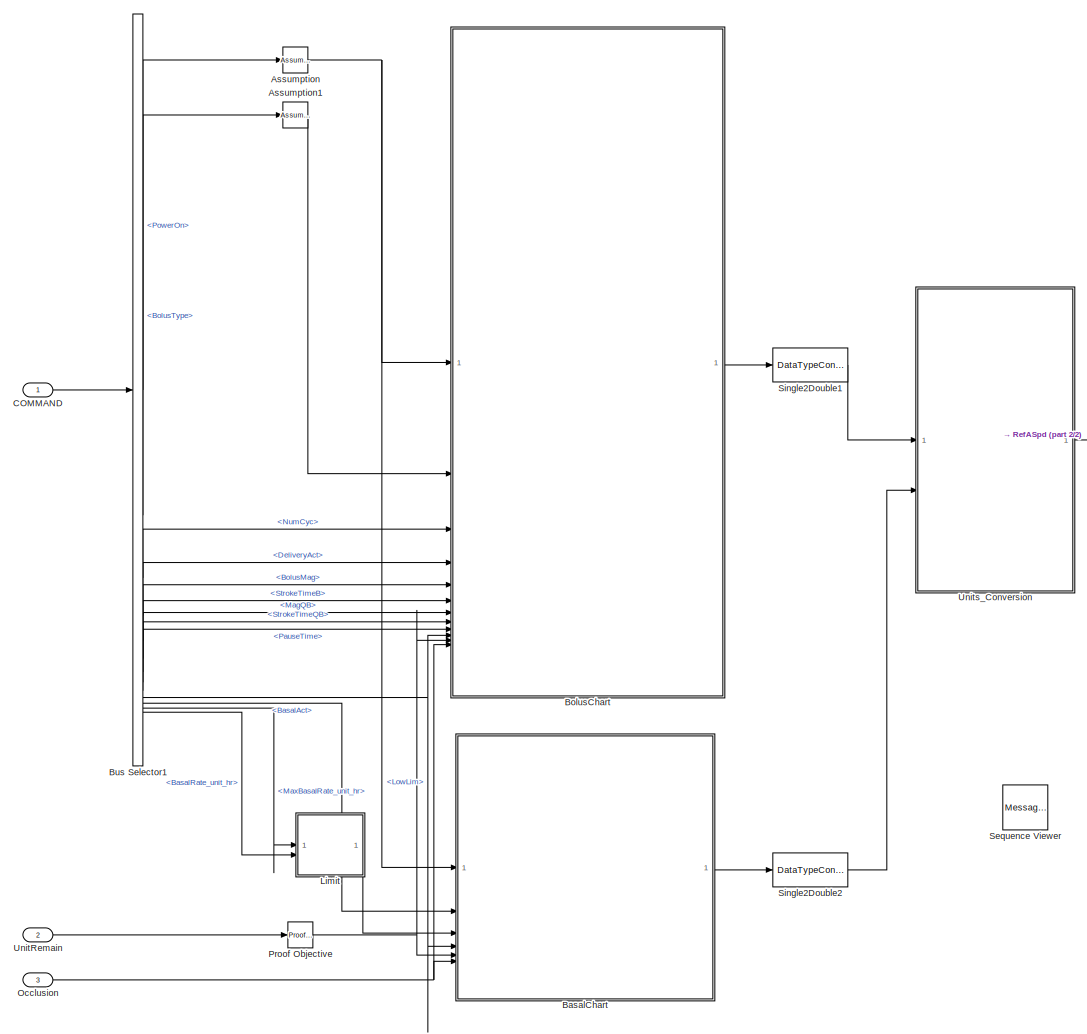
[diagram: root canvas - part 1/2, most of the canvas]
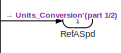
[diagram: root canvas - part 2/2, middle right region]
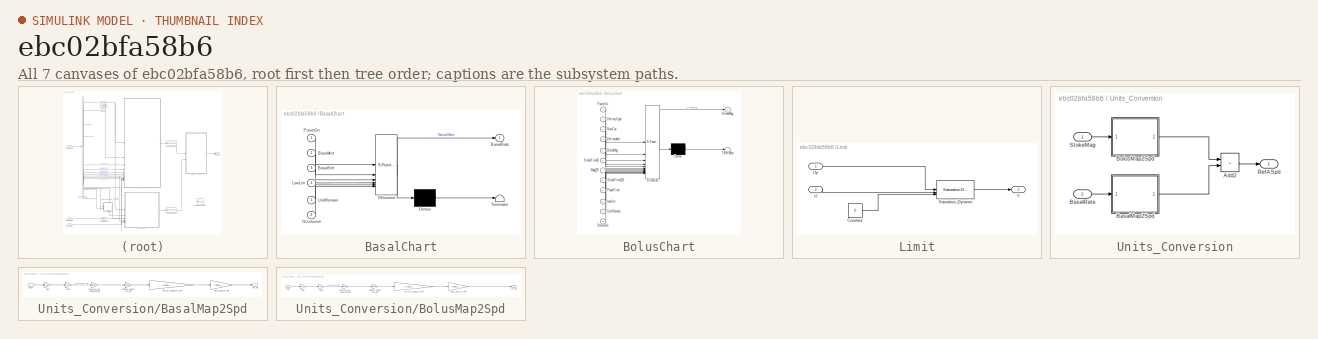
[diagram: thumbnail index - all 7 canvases of the model, root first then tree order]
MODEL slx_ebc02bfa58b6
KIND model
CONFIG AbsTol = auto
CONFIG EnableMultiTasking = off
CONFIG FixedStep = 0.001
CONFIG MaxStep = 0.001
CONFIG MinStep = auto
CONFIG RelTol = 1e-5
CONFIG SampleTimeConstraint = Unconstrained
CONFIG SolverName = FixedStepDiscrete
CONFIG StartTime = 0.0
CONFIG StopTime = 120
BLOCK [Reference] Assumption  REF=sldvlib/Objectives and Constraints/Assumption
  AttributesFormatString = %<intervals>
  Commented = through
  NameLocation = top
  SourceBlock = sldvlib/Objectives and Constraints/Assumption
  SourceType = Design Verifier Assumption
BLOCK [Reference] Assumption1  REF=sldvlib/Objectives and Constraints/Assumption
  AttributesFormatString = %<intervals>
  Commented = through
  NameLocation = top
  SourceBlock = sldvlib/Objectives and Constraints/Assumption
  SourceType = Design Verifier Assumption
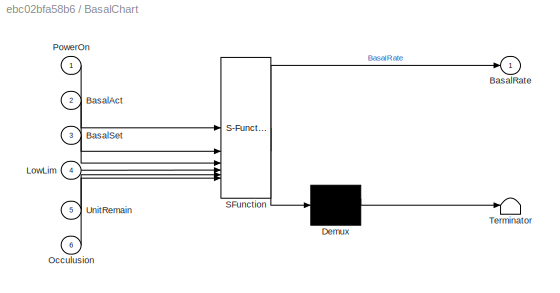
BLOCK [SubSystem] BasalChart
  ErrorFcn = Stateflow.Translate.translate
  PermitHierarchicalResolution = ExplicitOnly
  SFBlockType = Chart
  TreatAsAtomicUnit = on
BLOCK [Demux] BasalChart/ Demux 
  Outputs = 1
BLOCK [S-Function] BasalChart/ SFunction 
  EnableBusSupport = on
  FunctionName = sf_sfun
  PortCounts = [6 2]
  SFcnIsStateOwnerBlock = off
  SFunctionDeploymentMode = off
  Tag = Stateflow S-Function 2
BLOCK [Terminator] BasalChart/ Terminator 
BLOCK [Inport] BasalChart/BasalAct
  Port = 2
BLOCK [Outport] BasalChart/BasalRate
  VectorParamsAs1DForOutWhenUnconnected = off
BLOCK [Inport] BasalChart/BasalSet
  Port = 3
BLOCK [Inport] BasalChart/LowLim
  Port = 4
BLOCK [Inport] BasalChart/Occulusion
  Port = 6
BLOCK [Inport] BasalChart/PowerOn
BLOCK [Inport] BasalChart/UnitRemain
  Port = 5
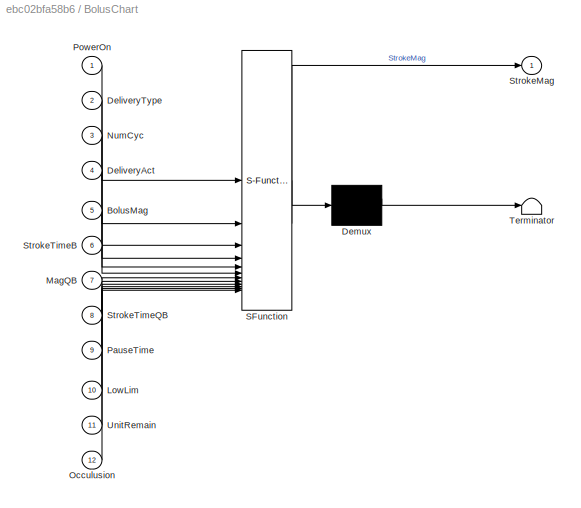
BLOCK [SubSystem] BolusChart
  ErrorFcn = Stateflow.Translate.translate
  PermitHierarchicalResolution = ExplicitOnly
  SFBlockType = Chart
  SystemSampleTime = 0.001
  TreatAsAtomicUnit = on
BLOCK [Demux] BolusChart/ Demux 
  Outputs = 1
BLOCK [S-Function] BolusChart/ SFunction 
  EnableBusSupport = on
  FunctionName = sf_sfun
  PortCounts = [12 2]
  SFcnIsStateOwnerBlock = off
  SFunctionDeploymentMode = off
  Tag = Stateflow S-Function 1
BLOCK [Terminator] BolusChart/ Terminator 
BLOCK [Inport] BolusChart/BolusMag
  Port = 5
BLOCK [Inport] BolusChart/DeliveryAct
  Port = 4
BLOCK [Inport] BolusChart/DeliveryType
  Port = 2
BLOCK [Inport] BolusChart/LowLim
  Port = 10
BLOCK [Inport] BolusChart/MagQB
  Port = 7
BLOCK [Inport] BolusChart/NumCyc
  Port = 3
BLOCK [Inport] BolusChart/Occulusion
  Port = 12
BLOCK [Inport] BolusChart/PauseTime
  Port = 9
BLOCK [Inport] BolusChart/PowerOn
BLOCK [Outport] BolusChart/StrokeMag
  VectorParamsAs1DForOutWhenUnconnected = off
BLOCK [Inport] BolusChart/StrokeTimeB
  Port = 6
BLOCK [Inport] BolusChart/StrokeTimeQB
  Port = 8
BLOCK [Inport] BolusChart/UnitRemain
  Port = 11
BLOCK [BusSelector] Bus Selector1
  OutputSignals = PowerOn,BolusType,NumCyc,DeliveryAct,BolusMag,StrokeTimeB,MagQB,StrokeTimeQB,PauseTime,LowLim,BasalAct,MaxBasalRate_unit_hr,BasalRate_unit_hr
BLOCK [Inport] COMMAND
  BusOutputAsStruct = on
  OutDataTypeStr = Bus: COMMAND
  PortDimensions = 1
BLOCK [SubSystem] Limit
BLOCK [Constant] Limit/Constant
  OutDataTypeStr = single
  Value = 0
BLOCK [Reference] Limit/Saturation_Dynamic  REF=simulink/Discontinuities/Saturation
Dynamic
  SourceBlock = simulink/Discontinuities/Saturation\nDynamic
  SourceType = Saturation Dynamic
BLOCK [Inport] Limit/U
  Port = 2
BLOCK [Inport] Limit/Up
BLOCK [Outport] Limit/Y
  VectorParamsAs1DForOutWhenUnconnected = off
BLOCK [Inport] Occlusion
  OutDataTypeStr = boolean
  Port = 3
  PortDimensions = 1
  SampleTime = 0.001
  SamplingMode = Sample based
  SignalType = real
BLOCK [Reference] Proof Objective  REF=sldvlib/Objectives and Constraints/Proof Objective
  AttributesFormatString = %<intervals>
  Commented = through
  NameLocation = top
  SourceBlock = sldvlib/Objectives and Constraints/Proof Objective
  SourceType = Design Verifier Proof Objective
BLOCK [Outport] RefASpd
  OutDataTypeStr = double
  OutMax = 25000
  OutMin = -25000
  PortDimensions = 1
  SampleTime = 0.001
  SamplingMode = Sample based
  SignalType = real
  VectorParamsAs1DForOutWhenUnconnected = off
BLOCK [MessageViewer] Sequence Viewer
  Commented = on
  History = 25000
BLOCK [DataTypeConversion] Single2Double1
  RndMeth = Floor
  SaturateOnIntegerOverflow = off
BLOCK [DataTypeConversion] Single2Double2
  RndMeth = Floor
  SaturateOnIntegerOverflow = off
BLOCK [Inport] UnitRemain
  OutDataTypeStr = single
  Port = 2
  PortDimensions = 1
  SampleTime = 0.001
  SamplingMode = Sample based
  SignalType = real
BLOCK [SubSystem] Units_Conversion
  TreatAsAtomicUnit = on
BLOCK [Sum] Units_Conversion/Add2
  IconShape = rectangular
BLOCK [SubSystem] Units_Conversion/BasalMap2Spd
BLOCK [Gain] Units_Conversion/BasalMap2Spd/Gain
  Gain = 1/60
BLOCK [Gain] Units_Conversion/BasalMap2Spd/Gain3
  Gain = 15
BLOCK [Gain] Units_Conversion/BasalMap2Spd/Gear_Input_rev_min
  Gain = reserv_str.DriveSys.GearRatio
BLOCK [Gain] Units_Conversion/BasalMap2Spd/InvCrossArea_Output_mm_min
  Gain = 1/reserv_str.Resvor.Area
BLOCK [Gain] Units_Conversion/BasalMap2Spd/Rev_inch_Output_rev_min
  Gain = 1/reserv_str.DriveSys.ScrewLead
BLOCK [Gain] Units_Conversion/BasalMap2Spd/mm2inch_Output_inch_min
  Gain = 1/25.4
BLOCK [Outport] Units_Conversion/BasalMap2Spd/rev_min
  VectorParamsAs1DForOutWhenUnconnected = off
BLOCK [Inport] Units_Conversion/BasalMap2Spd/unit_hr
BLOCK [Inport] Units_Conversion/BasalRate
  OutMax = 2
  OutMin = 0
  Port = 2
BLOCK [SubSystem] Units_Conversion/BolusMap2Spd
BLOCK [Gain] Units_Conversion/BolusMap2Spd/Gain
  Gain = 60
BLOCK [Gain] Units_Conversion/BolusMap2Spd/Gain3
  Gain = 15
BLOCK [Gain] Units_Conversion/BolusMap2Spd/Gear_Input_rev_min
  Gain = reserv_str.DriveSys.GearRatio
BLOCK [Gain] Units_Conversion/BolusMap2Spd/InvCrossArea_Output_mm_min
  Gain = 1/reserv_str.Resvor.Area
BLOCK [Gain] Units_Conversion/BolusMap2Spd/Rev_inch_Output_rev_min
  Gain = 1/reserv_str.DriveSys.ScrewLead
BLOCK [Gain] Units_Conversion/BolusMap2Spd/mm2inch_Output_inch_min
  Gain = 1/25.4
BLOCK [Outport] Units_Conversion/BolusMap2Spd/rev_min
  VectorParamsAs1DForOutWhenUnconnected = off
BLOCK [Inport] Units_Conversion/BolusMap2Spd/unit_s
BLOCK [Outport] Units_Conversion/RefASpd
  OutMax = 25000
  OutMin = -25000
  VectorParamsAs1DForOutWhenUnconnected = off
BLOCK [Inport] Units_Conversion/StokeMag
  OutMax = 15
  OutMin = 0
LINE Assumption1:1 -> BolusChart:2
NET Assumption:1 -> BasalChart:1, BolusChart:1
LINE BasalChart:1 -> Single2Double2:1
LINE BolusChart:1 -> Single2Double1:1
LINE Bus Selector1:1 -> Assumption:1
NET Bus Selector1:10 -> BasalChart:4, BolusChart:10
LINE Bus Selector1:11 -> BasalChart:2
LINE Bus Selector1:12 -> Limit:1
LINE Bus Selector1:13 -> Limit:2
LINE Bus Selector1:2 -> Assumption1:1
LINE Bus Selector1:3 -> BolusChart:3
LINE Bus Selector1:4 -> BolusChart:4
LINE Bus Selector1:5 -> BolusChart:5
LINE Bus Selector1:6 -> BolusChart:6
LINE Bus Selector1:7 -> BolusChart:7
LINE Bus Selector1:8 -> BolusChart:8
LINE Bus Selector1:9 -> BolusChart:9
LINE COMMAND:1 -> Bus Selector1:1
LINE Limit/Constant:1 -> Limit/Saturation_Dynamic:3
LINE Limit/Saturation_Dynamic:1 -> Limit/Y:1
LINE Limit/U:1 -> Limit/Saturation_Dynamic:2
LINE Limit/Up:1 -> Limit/Saturation_Dynamic:1
LINE Limit:1 -> BasalChart:3
NET Occlusion:1 -> BasalChart:6, BolusChart:12
NET Proof Objective:1 -> BasalChart:5, BolusChart:11
LINE Single2Double1:1 -> Units_Conversion:1
LINE Single2Double2:1 -> Units_Conversion:2
LINE UnitRemain:1 -> Proof Objective:1
LINE Units_Conversion/Add2:1 -> Units_Conversion/RefASpd:1
LINE Units_Conversion/BasalMap2Spd/Gain3:1 -> Units_Conversion/BasalMap2Spd/InvCrossArea_Output_mm_min:1
LINE Units_Conversion/BasalMap2Spd/Gain:1 -> Units_Conversion/BasalMap2Spd/Gain3:1
LINE Units_Conversion/BasalMap2Spd/Gear_Input_rev_min:1 -> Units_Conversion/BasalMap2Spd/rev_min:1
LINE Units_Conversion/BasalMap2Spd/InvCrossArea_Output_mm_min:1 -> Units_Conversion/BasalMap2Spd/mm2inch_Output_inch_min:1
LINE Units_Conversion/BasalMap2Spd/Rev_inch_Output_rev_min:1 -> Units_Conversion/BasalMap2Spd/Gear_Input_rev_min:1
LINE Units_Conversion/BasalMap2Spd/mm2inch_Output_inch_min:1 -> Units_Conversion/BasalMap2Spd/Rev_inch_Output_rev_min:1
LINE Units_Conversion/BasalMap2Spd/unit_hr:1 -> Units_Conversion/BasalMap2Spd/Gain:1
LINE Units_Conversion/BasalMap2Spd:1 -> Units_Conversion/Add2:2
LINE Units_Conversion/BasalRate:1 -> Units_Conversion/BasalMap2Spd:1
LINE Units_Conversion/BolusMap2Spd/Gain3:1 -> Units_Conversion/BolusMap2Spd/InvCrossArea_Output_mm_min:1
LINE Units_Conversion/BolusMap2Spd/Gain:1 -> Units_Conversion/BolusMap2Spd/Gain3:1
LINE Units_Conversion/BolusMap2Spd/Gear_Input_rev_min:1 -> Units_Conversion/BolusMap2Spd/rev_min:1
LINE Units_Conversion/BolusMap2Spd/InvCrossArea_Output_mm_min:1 -> Units_Conversion/BolusMap2Spd/mm2inch_Output_inch_min:1
LINE Units_Conversion/BolusMap2Spd/Rev_inch_Output_rev_min:1 -> Units_Conversion/BolusMap2Spd/Gear_Input_rev_min:1
LINE Units_Conversion/BolusMap2Spd/mm2inch_Output_inch_min:1 -> Units_Conversion/BolusMap2Spd/Rev_inch_Output_rev_min:1
LINE Units_Conversion/BolusMap2Spd/unit_s:1 -> Units_Conversion/BolusMap2Spd/Gain:1
LINE Units_Conversion/BolusMap2Spd:1 -> Units_Conversion/Add2:1
LINE Units_Conversion/StokeMag:1 -> Units_Conversion/BolusMap2Spd:1
LINE Units_Conversion:1 -> RefASpd:1
note: NET lines group one-source signal fan-out (src -> all destinations, sorted); 1:1 wires keep LINE
CHART Test Assessment states=3 transitions=10
  STATE_LABEL 'CheckInitialValue'
  STATE_LABEL "step_1_1\nverify(elapsed< 0.1 || BasalRate == BasalSet,'Basal rate does not follow command');"
  STATE_LABEL "step_1_2 \nverify(elapsed< 0.1|| BasalRate ==0,'Basal rate needs to be zero when turned off or deactivated');"
  STATE_LABEL '[(PowerOn == true & BasalActive == true & UnitRemain>LowLim & Occ == false)\n]'
  STATE_LABEL '[~in(CheckInitialValue.step_1_1)]'
  STATE_LABEL '[~in(CheckInitialValue.step_1_2)]'
  STATE_LABEL "step_1_1\nverify(elapsed< 0.1 || BasalRate == BasalSet,'Basal rate does not follow command');"
  STATE_LABEL "step_1_2 \nverify(elapsed< 0.1|| BasalRate ==0,'Basal rate needs to be zero when turned off or deactivated');"
CHART BolusChart states=21 transitions=54
  STATE_LABEL 'NormalBolusMode'
  STATE_LABEL 'OcculusioOccur'
  STATE_LABEL 'UnitRemainLow'
  STATE_LABEL 'NumCycFinished'
  STATE_LABEL 'Deliver\nentry:\nStrokeMag = BolusMag/StrokeTimeB;\n'
  STATE_LABEL 'Active\nentry:\ni = int8(0);'
  STATE_LABEL 'Pause\nentry:\nStrokeMag = single(0);\n'
  STATE_LABEL 'Inactive\nentry:\nStrokeMag = single(0);'
  STATE_LABEL 'after(StrokeTimeB,sec)'
  STATE_LABEL '{i = i + 1;}'
  STATE_LABEL '[i<NumCyc]'
  STATE_LABEL '[UnitRemain>=LowLim+BolusMag]'
  STATE_LABEL '[Occulusion==false]'
  STATE_LABEL '[(UnitRemain>LowLim+BolusMag)&&Occulusion==false]'
  STATE_LABEL '[DeliveryAct == true]'
  STATE_LABEL '\n[i<NumCyc]'
  STATE_LABEL 'after(PauseTime,sec)'
  STATE_LABEL '[UnitRemain<LowLim+BolusMag||Occulusion==true]'
  STATE_LABEL 'OcculusioOccur'
  STATE_LABEL 'UnitRemainLow'
  STATE_LABEL 'NumCycFinished'
  STATE_LABEL 'Deliver\nentry:\nStrokeMag = BolusMag/StrokeTimeB;\n'
  STATE_LABEL 'Active\nentry:\ni = int8(0);'
  STATE_LABEL 'Pause\nentry:\nStrokeMag = single(0);\n'
  STATE_LABEL 'Inactive\nentry:\nStrokeMag = single(0);'
  STATE_LABEL 'Off'
  STATE_LABEL 'Armed\n'
  STATE_LABEL 'QuickBolusMode'
  STATE_LABEL 'Deliver1\n\nentry:\nStrokeMag = MagQB (1)/StrokeTimeQB(1);\n'
  STATE_LABEL 'Pause1\n\nentry:\nStrokeMag = single(0);'
  STATE_LABEL 'Inactive\nentry:\nStrokeMag = single(0);'
  STATE_LABEL 'Active\n\nentry:\ni = int8(0);'
  STATE_LABEL 'Deliver2\n\nentry:\nStrokeMag = MagQB(2)/StrokeTimeQB(2);\n'
  STATE_LABEL 'Pause2\n\nentry:\nStrokeMag = single(0);'
  STATE_LABEL 'Deliver3\n\nentry:\nStrokeMag = MagQB(3)/StrokeTimeQB(3);\n'
  STATE_LABEL 'Pause3\n\nentry:\nStrokeMag = single(0);'
  STATE_LABEL 'Deliver4\n\nentry:\nStrokeMag = MagQB(4)/StrokeTimeQB(4);\n'
  STATE_LABEL 'Pause4\n\nentry:\nStrokeMag = single(0);'
  STATE_LABEL 'after(PauseTime,sec)'
  STATE_LABEL '[UnitRemain>LowLim+sum(MagQB)]'
CHART BasalChart states=4 transitions=10
  STATE_LABEL 'Off'
  STATE_LABEL 'On\n'
  STATE_LABEL 'BasalOff\n\nduring:\nBasalRate = single(0);\n'
  STATE_LABEL 'BasalOn\n\nduring:\nBasalRate = BasalSet;\nexit:\nBasalRate = single(0);\n'
CHART  states=0 transitions=0
CHART  states=0 transitions=0
